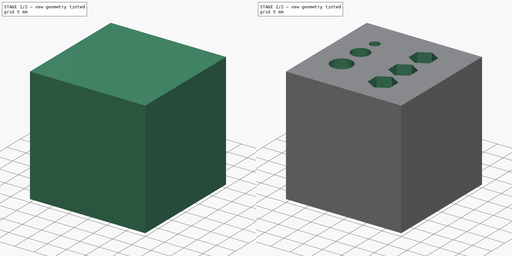
[diagram: build sequence overview — one tinted view per stage of 2, left to right]
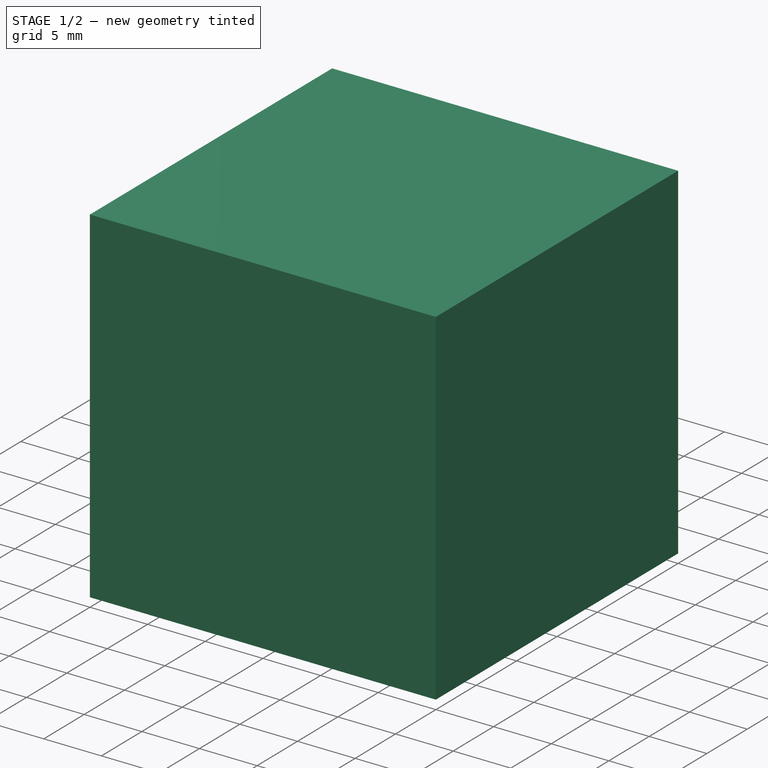
[diagram: stage 1 of 2 — iso view after this stage's code; geometry added in this stage tinted green]
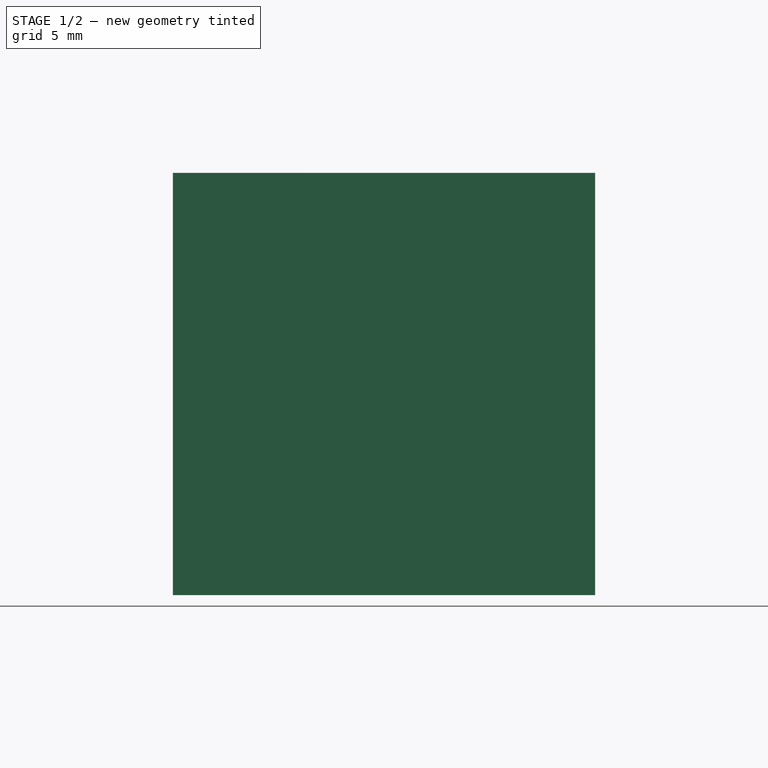
[diagram: stage 1 of 2 — front view after this stage's code; geometry added in this stage tinted green]
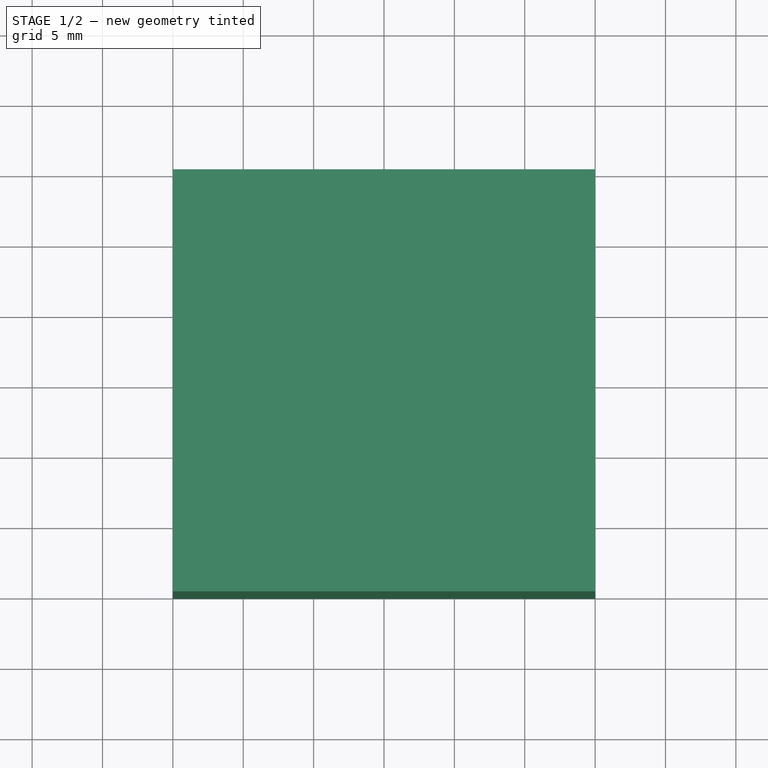
[diagram: stage 1 of 2 — top view after this stage's code; geometry added in this stage tinted green]
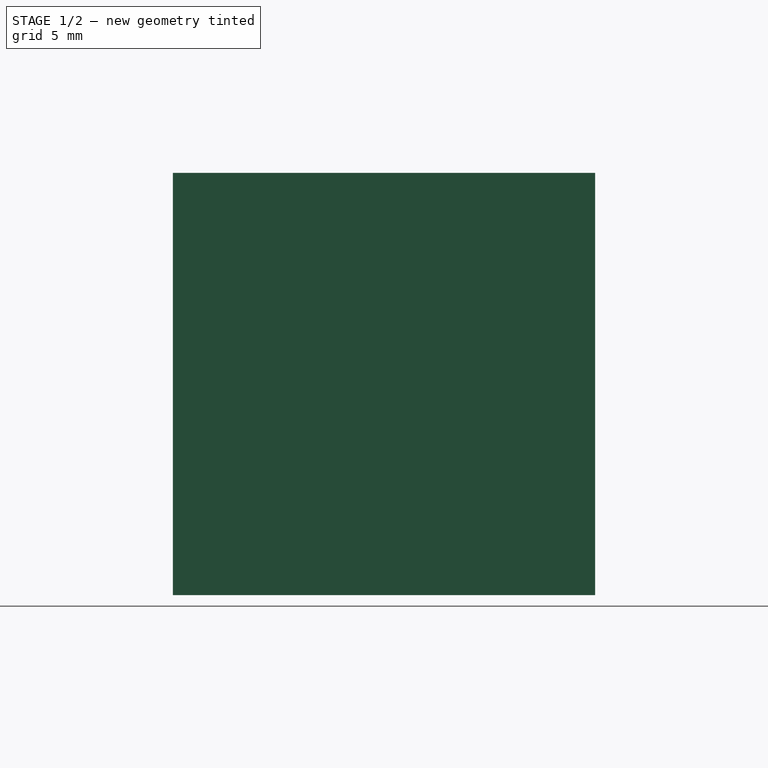
[diagram: stage 1 of 2 — right view after this stage's code; geometry added in this stage tinted green]
FCSTD DOCUMENT  (FreeCAD 0.19R20209 (Git))
Label: Test_Cube
License: Creative Commons Attribution
LicenseURL: http://creativecommons.org/licenses/by/4.0/
objects: Sketcher::SketchObject×4, PartDesign::Pocket×3, PartDesign::Pad×1, PartDesign::Body×1
note: 13 computed .brp shape members not serialized (recipe doc carries the construction recipe); baked Part::Feature solids carry a one-line shape summary decoded from their .brp

FEATURE [Sketcher::SketchObject] Sketch
  MapMode = 5
  Placement = pos=(0,0,0) rot=(1,0,0;1.5708rad)
  Support = -> [XZ_Plane]
  sketch-geometry (4):
    g0: LineSegment StartX=-15 StartY=15 StartZ=0 EndX=15 EndY=15 EndZ=0
    g1: LineSegment StartX=15 StartY=15 StartZ=0 EndX=15 EndY=-15 EndZ=0
    g2: LineSegment StartX=15 StartY=-15 StartZ=0 EndX=-15 EndY=-15 EndZ=0
    g3: LineSegment StartX=-15 StartY=-15 StartZ=0 EndX=-15 EndY=15 EndZ=0
  constraints (11):
    c: Coincident(g0,g1)
    c: Coincident(g1,g2)
    c: Coincident(g2,g3)
    c: Coincident(g3,g0)
    c: Horizontal(g0)
    c: Horizontal(g2)
    c: Vertical(g1)
    c: Vertical(g3)
    c: Symmetric(g0,g1,g-1)
    c: Equal(g0,g3)
    c: DistanceX(g0,g0) = 30
FEATURE [PartDesign::Pad] Pad
  Length = 30
  Length2 = 100
  Midplane = true
  Placement = pos=(0,0,0) rot=(1,0,0;1.5708rad)
  Profile = -> Sketch
  Refine = true
  Type = 0
FEATURE [Sketcher::SketchObject] Sketch001
  MapMode = 5
  Support = -> [XY_Plane]
  sketch-geometry (6):
    g0: Circle CenterX=-7.5 CenterY=7.30044 CenterZ=0 NormalX=0 NormalY=0 NormalZ=1 AngleXU=0 Radius=1.6
    g1: Circle CenterX=-7.5 CenterY=1.99191 CenterZ=0 NormalX=0 NormalY=0 NormalZ=1 AngleXU=0 Radius=2.6
    g2: Circle CenterX=-7.5 CenterY=-5 CenterZ=0 NormalX=0 NormalY=0 NormalZ=1 AngleXU=0 Radius=3.1
    g3: Circle CenterX=5 CenterY=7.5 CenterZ=0 NormalX=0 NormalY=0 NormalZ=1 AngleXU=0 Radius=1.6
    g4: Circle CenterX=5 CenterY=0 CenterZ=0 NormalX=0 NormalY=0 NormalZ=1 AngleXU=0 Radius=1.6
    g5: Circle CenterX=5 CenterY=-7.5 CenterZ=0 NormalX=0 NormalY=0 NormalZ=1 AngleXU=0 Radius=1.6
  constraints (15):
    c: Vertical(g2,g0)
    c: DistanceX(g1,g-1) = 7.5
    c: Diameter(g0) = 3.2
    c: Diameter(g1) = 5.2
    c: Diameter(g2) = 6.2
    c: DistanceY(g2,g-1) = 5
    c: Vertical(g0,g1)
    c: Vertical(g3,g4)
    c: DistanceX(g-1,g4) = 5
    c: PointOnObject(g4,g-1)
    c: Symmetric(g5,g3,g4)
    c: DistanceY(g5,g3) = 15
    c: Equal(g3,g4)
    c: Equal(g4,g5)
    c: Diameter(g3) = 3.2
FEATURE [PartDesign::Pocket] Pocket
  BaseFeature = -> Pad
  Length = 5
  Length2 = 100
  Placement = pos=(0,0,0) rot=(1,0,0;1.5708rad)
  Profile = -> Sketch001
  Refine = true
  Type = 1
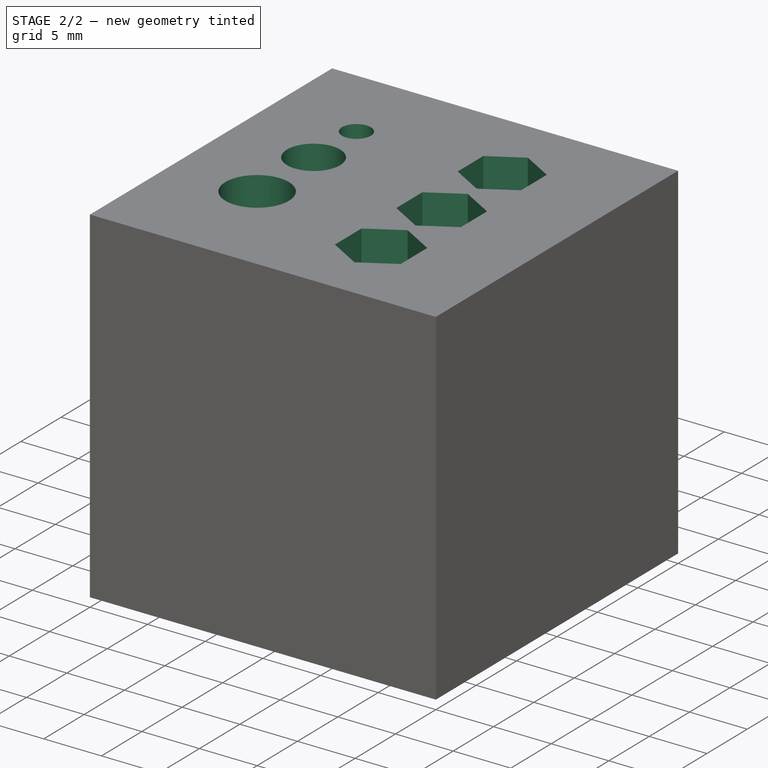
[diagram: stage 2 of 2 — iso view after this stage's code; geometry added in this stage tinted green]
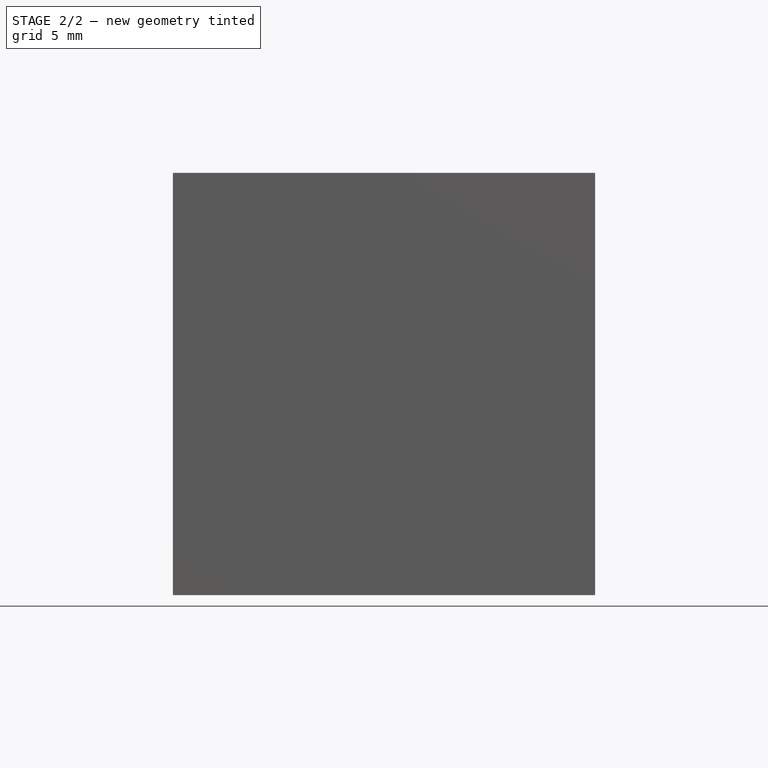
[diagram: stage 2 of 2 — front view after this stage's code; geometry added in this stage tinted green]
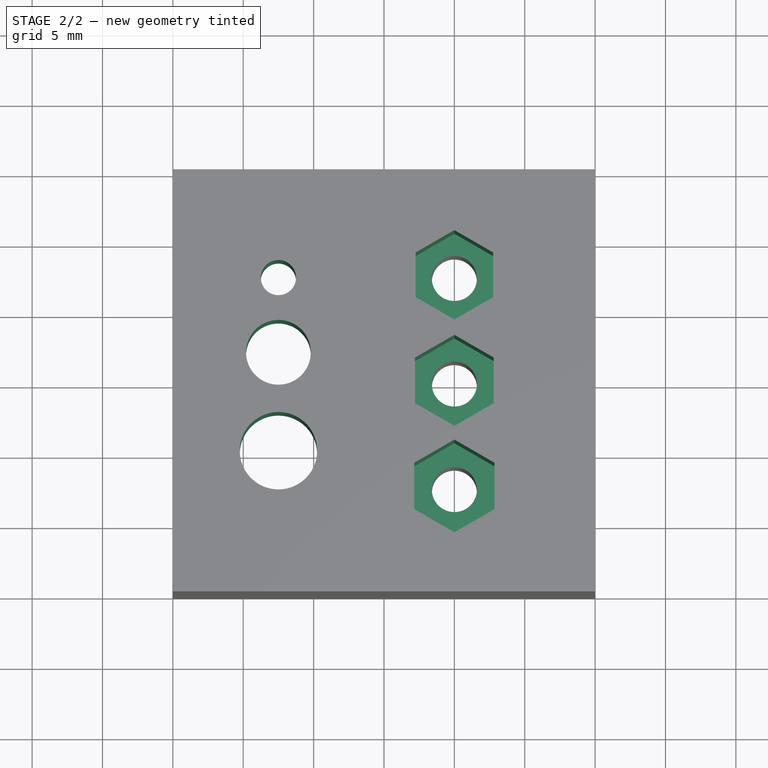
[diagram: stage 2 of 2 — top view after this stage's code; geometry added in this stage tinted green]
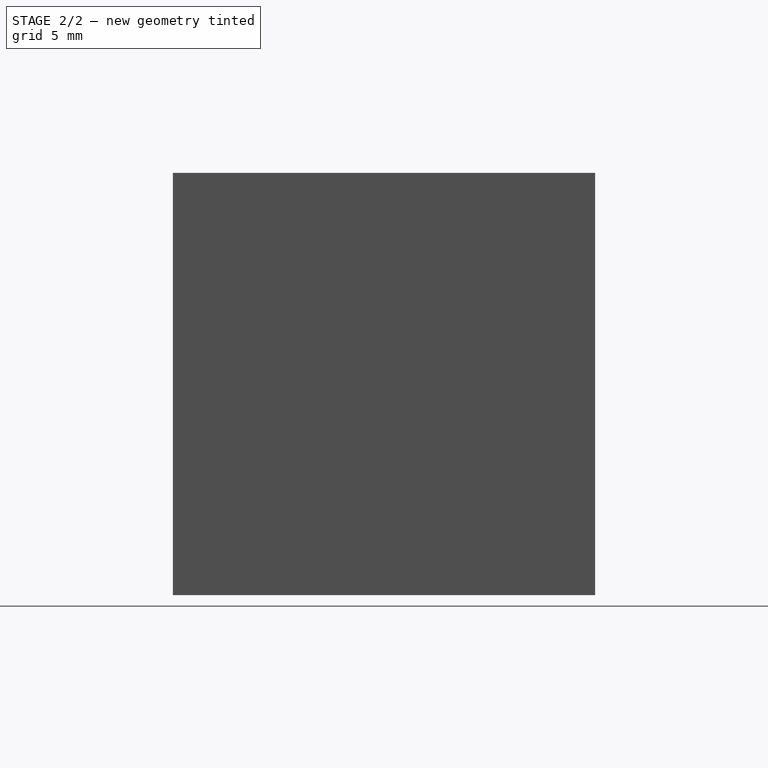
[diagram: stage 2 of 2 — right view after this stage's code; geometry added in this stage tinted green]
FEATURE [Sketcher::SketchObject] Sketch002
  ExternalGeometry = -> [Pocket]
  MapMode = 5
  Support = -> [XY_Plane]
  sketch-geometry (24):
    g0: LineSegment StartX=7.75 StartY=5.91229 StartZ=0 EndX=7.75 EndY=9.08771 EndZ=0
    g1: LineSegment StartX=7.75 StartY=9.08771 StartZ=0 EndX=5 EndY=10.6754 EndZ=0
    g2: LineSegment StartX=5 StartY=10.6754 StartZ=0 EndX=2.25 EndY=9.08771 EndZ=0
    g3: LineSegment StartX=2.25 StartY=9.08771 StartZ=0 EndX=2.25 EndY=5.91229 EndZ=0
    g4: LineSegment StartX=2.25 StartY=5.91229 StartZ=0 EndX=5 EndY=4.32457 EndZ=0
    g5: LineSegment StartX=5 StartY=4.32457 StartZ=0 EndX=7.75 EndY=5.91229 EndZ=0
    g6: Circle [constr] CenterX=5 CenterY=7.5 CenterZ=0 NormalX=0 NormalY=0 NormalZ=1 AngleXU=0 Radius=3.17543
    g7: LineSegment StartX=7.8 StartY=-1.61658 StartZ=0 EndX=7.8 EndY=1.61658 EndZ=0
    g8: LineSegment StartX=7.8 StartY=1.61658 StartZ=0 EndX=5 EndY=3.23316 EndZ=0
    g9: LineSegment StartX=5 StartY=3.23316 StartZ=0 EndX=2.2 EndY=1.61658 EndZ=0
    g10: LineSegment StartX=2.2 StartY=1.61658 StartZ=0 EndX=2.2 EndY=-1.61658 EndZ=0
    g11: LineSegment StartX=2.2 StartY=-1.61658 StartZ=0 EndX=5 EndY=-3.23316 EndZ=0
    g12: LineSegment StartX=5 StartY=-3.23316 StartZ=0 EndX=7.8 EndY=-1.61658 EndZ=0
    g13: Circle [constr] CenterX=5 CenterY=0 CenterZ=0 NormalX=0 NormalY=0 NormalZ=1 AngleXU=0 Radius=3.23316
    g14: LineSegment StartX=7.85 StartY=-9.14545 StartZ=0 EndX=7.85 EndY=-5.85455 EndZ=0
    g15: LineSegment StartX=7.85 StartY=-5.85455 StartZ=0 EndX=5 EndY=-4.2091 EndZ=0
    g16: LineSegment StartX=5 StartY=-4.2091 StartZ=0 EndX=2.15 EndY=-5.85455 EndZ=0
    g17: LineSegment StartX=2.15 StartY=-5.85455 StartZ=0 EndX=2.15 EndY=-9.14545 EndZ=0
    g18: LineSegment StartX=2.15 StartY=-9.14545 StartZ=0 EndX=5 EndY=-10.7909 EndZ=0
    g19: LineSegment StartX=5 StartY=-10.7909 StartZ=0 EndX=7.85 EndY=-9.14545 EndZ=0
    g20: Circle [constr] CenterX=5 CenterY=-7.5 CenterZ=0 NormalX=0 NormalY=0 NormalZ=1 AngleXU=0 Radius=3.2909
    g21: Circle CenterX=-7.5 CenterY=7.30044 CenterZ=0 NormalX=0 NormalY=0 NormalZ=1 AngleXU=0 Radius=1.25
    g22: Circle CenterX=-7.5 CenterY=1.99191 CenterZ=0 NormalX=0 NormalY=0 NormalZ=1 AngleXU=0 Radius=2.3
    g23: Circle CenterX=-7.5 CenterY=-5 CenterZ=0 NormalX=0 NormalY=0 NormalZ=1 AngleXU=0 Radius=2.75
  constraints (54):
    c: Coincident(g0,g1)
    c: Coincident(g1,g2)
    c: Coincident(g2,g3)
    c: Coincident(g3,g4)
    c: Coincident(g4,g5)
    c: Coincident(g5,g0)
    c: Equal(g0, g1-g5) x5
    c: PointOnObject(g0,g6)
    c: PointOnObject(g1,g6)
    c: PointOnObject(g2,g6)
    c: PointOnObject(g3,g6)
    c: PointOnObject(g4,g6)
    c: PointOnObject(g5,g6)
    c: Coincident(g7,g8)
    c: Coincident(g8,g9)
    c: Coincident(g9,g10)
    c: Coincident(g10,g11)
    c: Coincident(g11,g12)
    c: Coincident(g12,g7)
    c: Equal(g7, g8-g12) x5
    c: PointOnObject(g7,g13)
    c: PointOnObject(g8,g13)
    c: PointOnObject(g9,g13)
    c: PointOnObject(g10,g13)
    c: PointOnObject(g11,g13)
    c: PointOnObject(g12,g13)
    c: Coincident(g14,g15)
    c: Coincident(g15,g16)
    c: Coincident(g16,g17)
    c: Coincident(g17,g18)
    c: Coincident(g18,g19)
    c: Coincident(g19,g14)
    c: Equal(g14, g15-g19) x5
    c: PointOnObject(g14,g20)
    c: PointOnObject(g15,g20)
    c: PointOnObject(g16,g20)
    c: PointOnObject(g17,g20)
    c: PointOnObject(g18,g20)
    c: PointOnObject(g19,g20)
    c: Coincident(g6,g-3)
    c: Distance(g2,g0) = 5.5
    c: Coincident(g13,g-4)
    c: Distance(g9,g7) = 5.6
    c: Vertical(g13,g8)
    c: Vertical(g8,g4)
    c: Coincident(g20,g-5)
    c: Distance(g16,g14) = 5.7
    c: Vertical(g20,g15)
    c: Coincident(g-6,g21)
    c: Coincident(g22,g-7)
    c: Coincident(g23,g-8)
    c: Diameter(g21) = 2.5
    c: Diameter(g22) = 4.6
    c: Diameter(g23) = 5.5
FEATURE [PartDesign::Pocket] Pocket001
  BaseFeature = -> Pocket
  Length = 5
  Length2 = 100
  Placement = pos=(0,0,0) rot=(1,0,0;1.5708rad)
  Profile = -> Sketch002
  Refine = true
  Reversed = true
  Type = 1
FEATURE [Sketcher::SketchObject] Sketch003
  MapMode = 5
  Placement = pos=(-15,0,0) rot=(0.707107,0,-0.707107;3.14159rad)
  Support = -> [Pocket001]
  sketch-geometry (4):
    g0: LineSegment StartX=-5 StartY=5 StartZ=0 EndX=5 EndY=5 EndZ=0
    g1: LineSegment StartX=5 StartY=5 StartZ=0 EndX=5 EndY=-5 EndZ=0
    g2: LineSegment StartX=5 StartY=-5 StartZ=0 EndX=-5 EndY=-5 EndZ=0
    g3: LineSegment StartX=-5 StartY=-5 StartZ=0 EndX=-5 EndY=5 EndZ=0
  constraints (11):
    c: Coincident(g0,g1)
    c: Coincident(g1,g2)
    c: Coincident(g2,g3)
    c: Coincident(g3,g0)
    c: Horizontal(g0)
    c: Horizontal(g2)
    c: Vertical(g1)
    c: Vertical(g3)
    c: Equal(g0,g3)
    c: Symmetric(g0,g1,g-1)
    c: DistanceX(g0,g0) = 10
FEATURE [PartDesign::Pocket] Pocket002
  BaseFeature = -> Pocket001
  Length = 3
  Length2 = 100
  Placement = pos=(0,0,0) rot=(1,0,0;1.5708rad)
  Profile = -> Sketch003
  Refine = true
  Type = 0
FEATURE [PartDesign::Body] Body
  Group = -> [Sketch,Pad,Sketch001,Pocket,Sketch002,Pocket001,Sketch003,Pocket002]
  Origin = -> Origin
  Tip = -> Pocket002
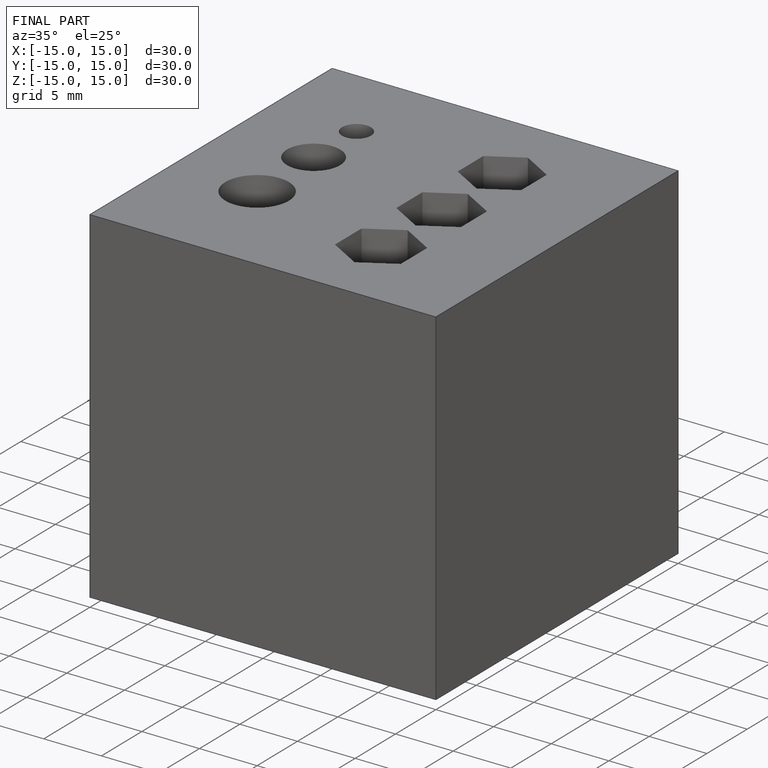
[diagram: finished part — iso view with bounding-box wireframe]
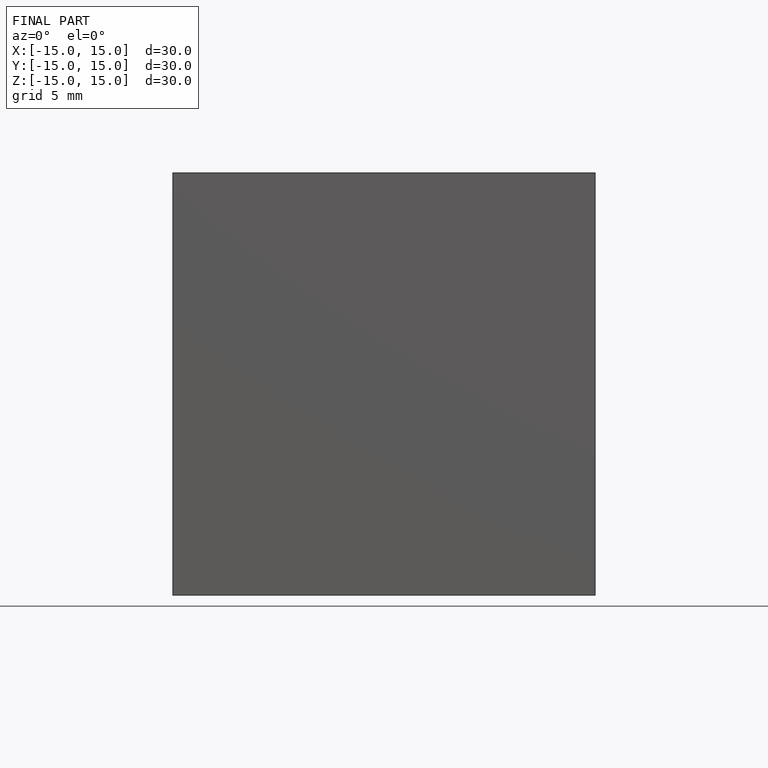
[diagram: finished part — front view with bounding-box wireframe]
